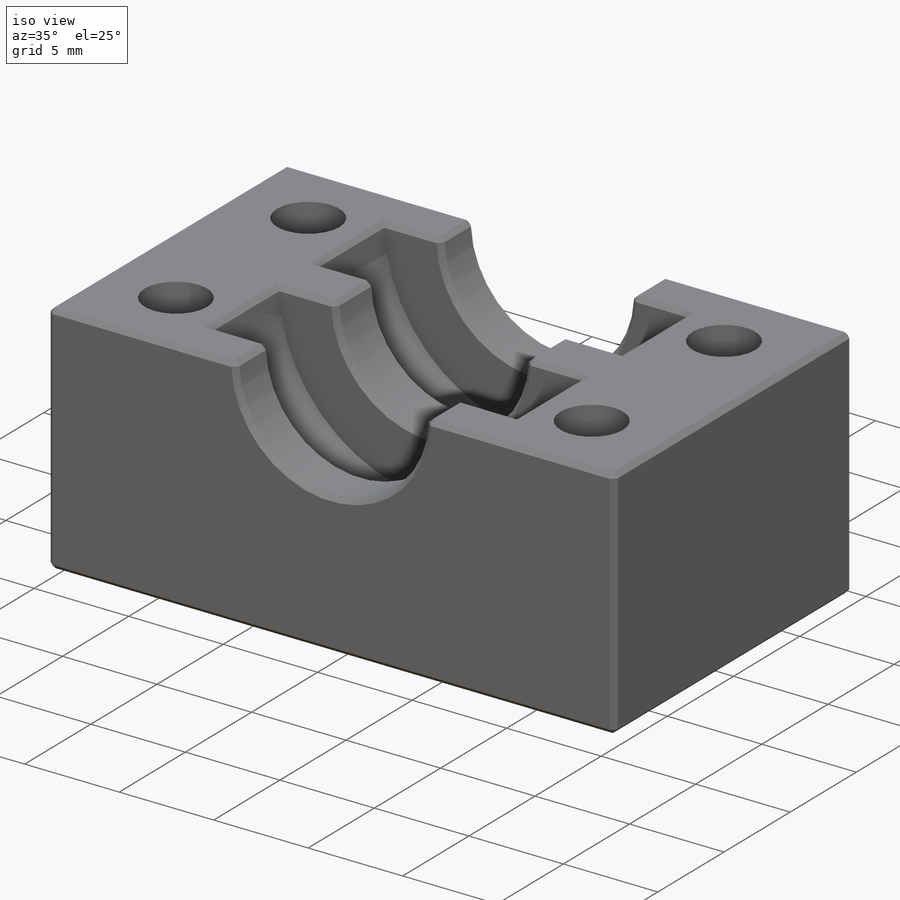
[diagram: iso view]
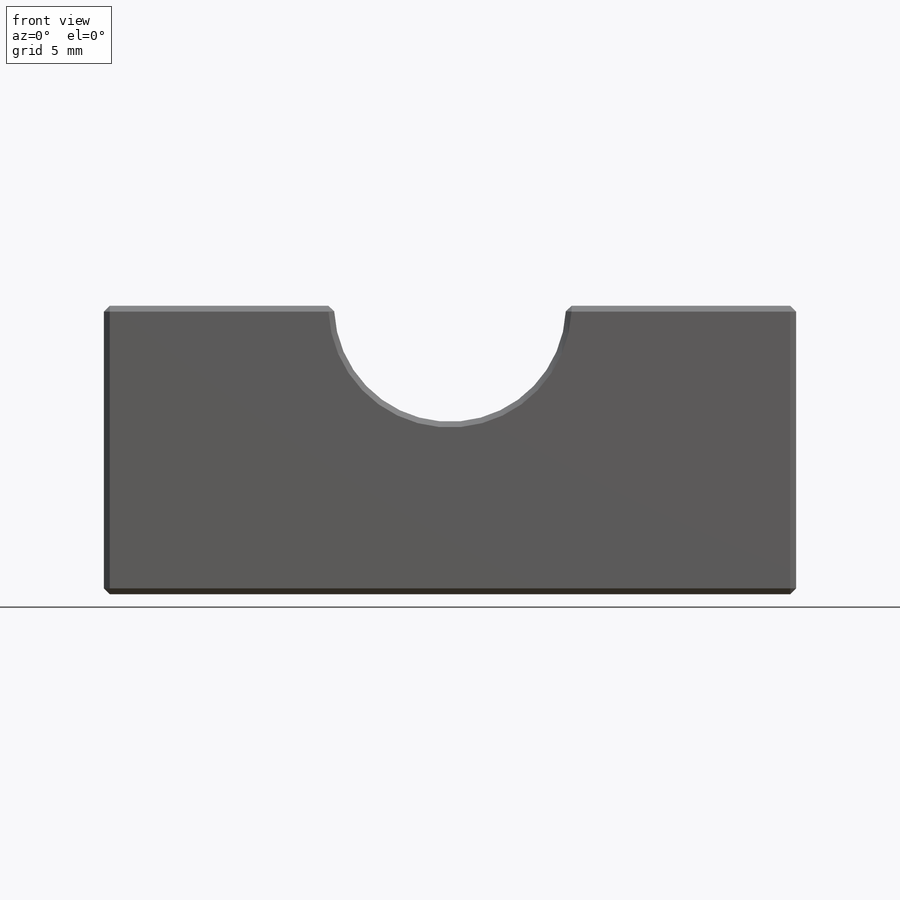
[diagram: front view]
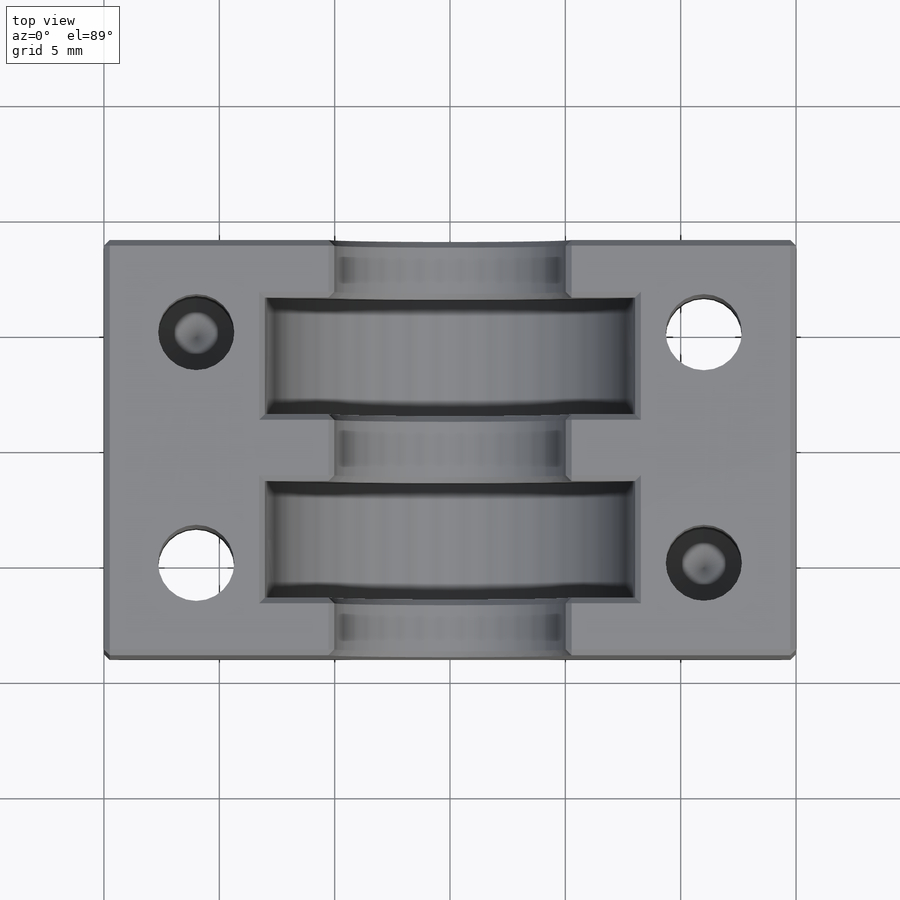
[diagram: top view]
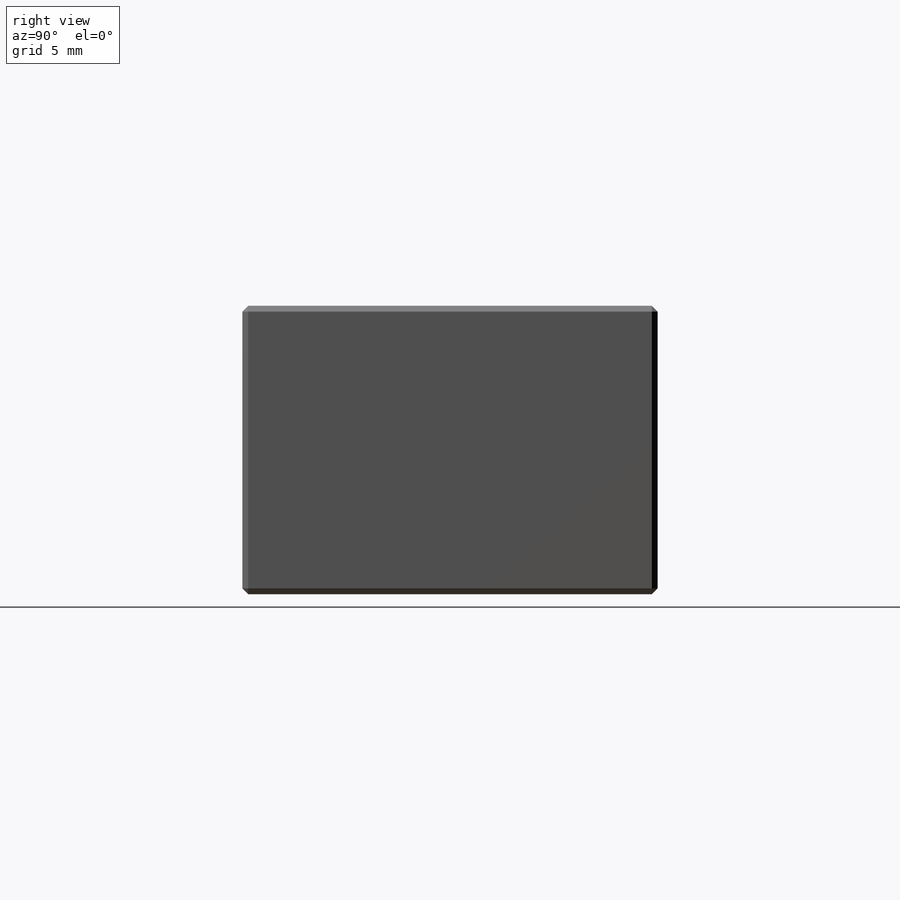
[diagram: right view]
SOLIDWORKS PART (.sldprt)
format: sldprt  version: not decoded by parser v0  size: 418,304 bytes
history: native  units: mm
features: sketch x5, thread x3, plane x2, cut_extrude x2, chamfer x2, material x1, extrude x1, hole x1 (+15 scaffold rows collapsed)
feature tree (32):
  scaffold x15  (default folders/planes/origin — collapsed)
  material  "1060 Alloy"
  sketch  "Sketch1"  dims[D1=14.0mm D2=25.0mm]
  extrude  "Extrude1"  Depth=9mm
  plane  "Plane1"  Offset=2.5mm
  sketch  "Sketch2"  dims[D1=13.0mm]
  cut_extrude  "Cut-Extrude1"  Depth=5.05mm
  plane  "Plane2"  Offset=2.5mm
  hole  "M4x0.7 Tapped Hole1"  [1 undecoded]
  sketch  "3DSketch1"  dims[c1.D1=3.0mm c1.D2=4.0mm c1.D3=3.0mm c1.D4=~3.783799mm c1.D5=4.0mm c2.D4=14.0mm c2.D5=4.0mm c3.D4=4.0mm c3.D5=3.0mm c3.D6=12.5mm c3.D7=12.5mm]
  thread  "Hole Thread1"  Diameter=4mm  [1 undecoded]
  thread  "Hole Thread2"  Diameter=4mm  [1 undecoded]
  sketch  "Sketch6"  dims[hole-wizard template sketch: 60 standard entries collapsed; hole parameters kept: c18.Thru Tap Drill Depth=9.0mm]
  thread  "Hole Thread3"  Diameter=4mm  [1 undecoded]
  sketch  "Sketch9"  dims[D1=8.0mm]
  cut_extrude  "Cut-Extrude2"  Depth=8mm
  chamfer  "Chamfer1"  Distance=10mm Angle=30deg
  chamfer  "Chamfer2"  Distance=0.25mm Angle=45deg
decode coverage: 13 of 14 modeling features carry decoded parameters
note: ~ marks probable driven/reference dimensions
note: 4 parameter values undecoded
note: suppression state not decoded; provenance and decode notes live in map.json
